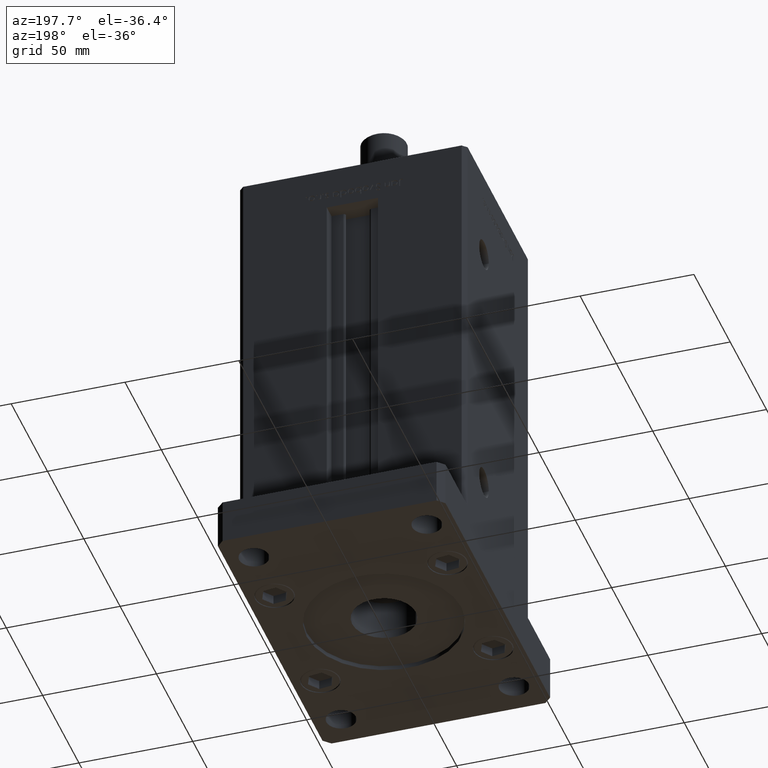
[diagram: clean part render]
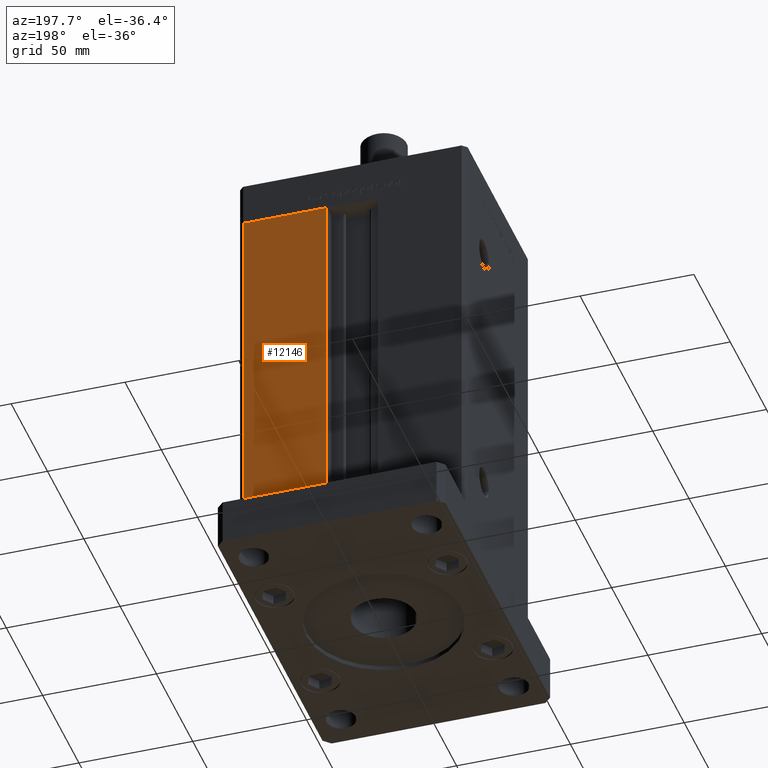
[diagram: same view with one face highlighted and labeled with its STEP entity id]
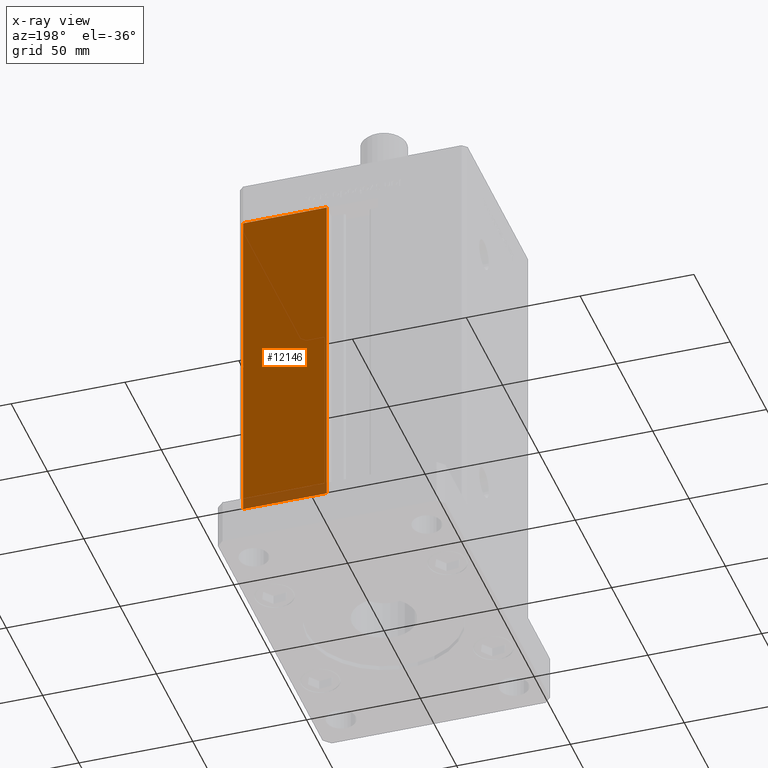
[diagram: x-ray of the same camera — body ghosted, the highlighted face saturated]
A machine part, auxiliary view. The second image highlights one B-rep face of the part: STEP entity #12146.
The next image is the same camera in x-ray: the body ghosted, the highlighted face saturated — about 4% of this face is hidden behind the body in this view.
In plain terms, the highlighted planar face has unit normal (-0, -1, 0).
Its self-contained STEP definition (entity closure, byte-faithful):
#120 = VECTOR ( 'NONE', #4575, 1000.000000000000000 ) ;
#393 = CARTESIAN_POINT ( 'NONE',  ( 11.24999999999999112, 43.50000000000000000, 148.5000000000000000 ) ) ;
#2776 = CARTESIAN_POINT ( 'NONE',  ( -11.24999999999999822, 43.50000000000000000, 0.000000000000000000 ) ) ;
#4146 = DIRECTION ( 'NONE',  ( -1.888134395621013663E-16, -1.000000000000000000, 0.000000000000000000 ) ) ;
#4456 = VERTEX_POINT ( 'NONE', #27254 ) ;
#4575 = DIRECTION ( 'NONE',  ( -0.000000000000000000, -0.000000000000000000, 1.000000000000000000 ) ) ;
#4630 = EDGE_CURVE ( 'NONE', #4456, #9178, #6888, .T. ) ;
#6888 = LINE ( 'NONE', #2776, #15776 ) ;
#7190 = FACE_OUTER_BOUND ( 'NONE', #11115, .T. ) ;
#9178 = VERTEX_POINT ( 'NONE', #36215 ) ;
#9711 = LINE ( 'NONE', #26686, #23032 ) ;
#10278 = DIRECTION ( 'NONE',  ( -0.000000000000000000, -0.000000000000000000, -1.000000000000000000 ) ) ;
#10290 = VERTEX_POINT ( 'NONE', #393 ) ;
#10650 = ORIENTED_EDGE ( 'NONE', *, *, #25743, .T. ) ;
#11115 = EDGE_LOOP ( 'NONE', ( #41071, #23563, #10650, #43687 ) ) ;
#12146 = ADVANCED_FACE ( 'NONE', ( #7190 ), #40591, .F. ) ;
#15776 = VECTOR ( 'NONE', #44662, 1000.000000000000000 ) ;
#17414 = VECTOR ( 'NONE', #10278, 1000.000000000000000 ) ;
#18758 = LINE ( 'NONE', #36001, #17414 ) ;
#19121 = VERTEX_POINT ( 'NONE', #35908 ) ;
#20600 = EDGE_CURVE ( 'NONE', #9178, #10290, #34428, .T. ) ;
#22026 = DIRECTION ( 'NONE',  ( 1.000000000000000000, 0.000000000000000000, 0.000000000000000000 ) ) ;
#23032 = VECTOR ( 'NONE', #22026, 1000.000000000000000 ) ;
#23563 = ORIENTED_EDGE ( 'NONE', *, *, #20600, .T. ) ;
#25743 = EDGE_CURVE ( 'NONE', #10290, #19121, #9711, .T. ) ;
#26686 = CARTESIAN_POINT ( 'NONE',  ( -11.24999999999999822, 43.50000000000000000, 148.5000000000000000 ) ) ;
#27254 = CARTESIAN_POINT ( 'NONE',  ( 48.00000000000000711, 43.50000000000000000, 0.000000000000000000 ) ) ;
#34428 = LINE ( 'NONE', #51677, #120 ) ;
#35908 = CARTESIAN_POINT ( 'NONE',  ( 48.00000000000000711, 43.50000000000000000, 148.5000000000000000 ) ) ;
#36001 = CARTESIAN_POINT ( 'NONE',  ( 48.00000000000000711, 43.50000000000000000, 148.5000000000000000 ) ) ;
#36215 = CARTESIAN_POINT ( 'NONE',  ( 11.24999999999999822, 43.50000000000000000, 0.000000000000000000 ) ) ;
#38097 = DIRECTION ( 'NONE',  ( 1.000000000000000000, -1.888134395621013663E-16, 0.000000000000000000 ) ) ;
#40591 = PLANE ( 'NONE',  #53673 ) ;
#41071 = ORIENTED_EDGE ( 'NONE', *, *, #4630, .T. ) ;
#43687 = ORIENTED_EDGE ( 'NONE', *, *, #50978, .T. ) ;
#44662 = DIRECTION ( 'NONE',  ( -1.000000000000000000, 1.888134395621013663E-16, 0.000000000000000000 ) ) ;
#50978 = EDGE_CURVE ( 'NONE', #19121, #4456, #18758, .T. ) ;
#51677 = CARTESIAN_POINT ( 'NONE',  ( 11.24999999999999822, 43.50000000000000000, 0.000000000000000000 ) ) ;
#53190 = CARTESIAN_POINT ( 'NONE',  ( -11.24999999999999822, 43.50000000000000000, 148.5000000000000000 ) ) ;
#53673 = AXIS2_PLACEMENT_3D ( 'NONE', #53190, #4146, #38097 ) ;